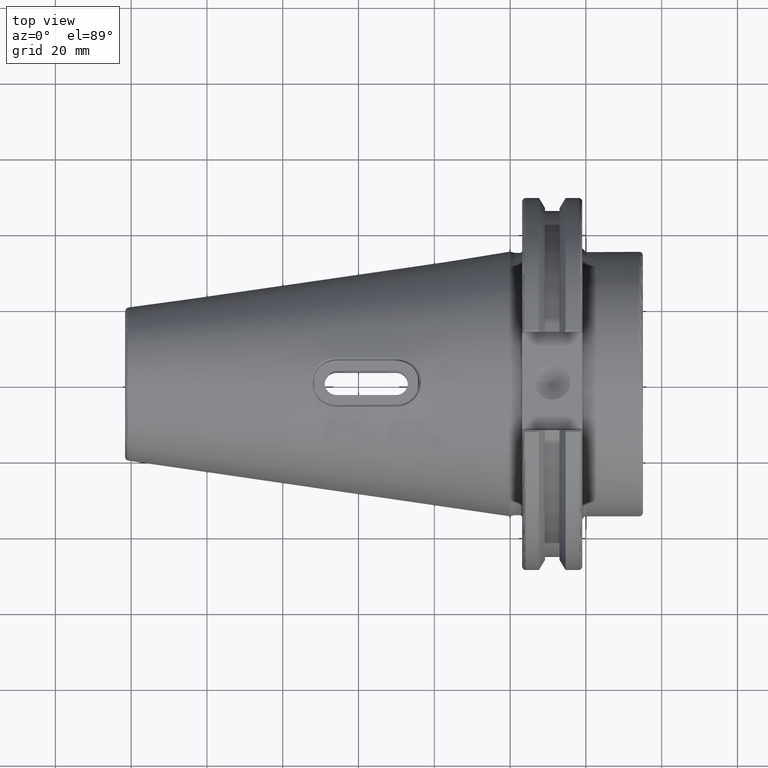
[diagram: clean part render]
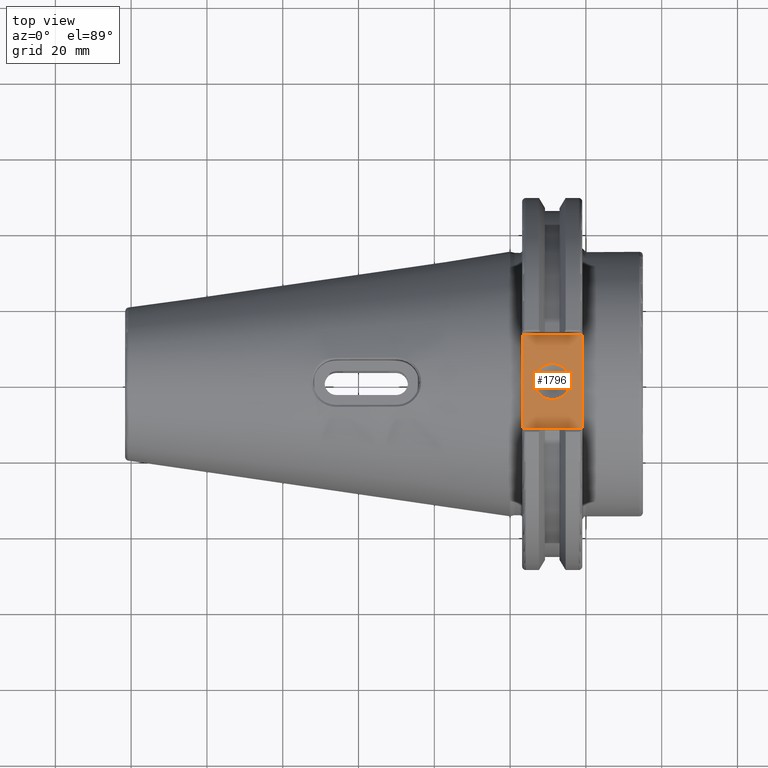
[diagram: same view with one face highlighted and labeled with its STEP entity id]
A machine part, top view. The second image highlights one B-rep face of the part: STEP entity #1796.
In plain terms, the highlighted planar face has unit normal (0, 0, 1).
Its self-contained STEP definition (entity closure, byte-faithful):
#150=FACE_BOUND('',#393,.T.);
#189=PLANE('',#1964);
#283=FACE_OUTER_BOUND('',#392,.T.);
#392=EDGE_LOOP('',(#1651,#1652,#1653,#1654));
#393=EDGE_LOOP('',(#1655));
#465=LINE('',#3444,#587);
#486=LINE('',#3544,#608);
#509=LINE('',#3722,#631);
#511=LINE('',#3725,#633);
#587=VECTOR('',#2199,10.);
#608=VECTOR('',#2238,10.);
#631=VECTOR('',#2307,10.);
#633=VECTOR('',#2311,10.);
#705=CIRCLE('',#1956,4.7625);
#813=VERTEX_POINT('',#3441);
#814=VERTEX_POINT('',#3443);
#840=VERTEX_POINT('',#3541);
#841=VERTEX_POINT('',#3543);
#887=VERTEX_POINT('',#3782);
#1038=EDGE_CURVE('',#813,#814,#465,.T.);
#1071=EDGE_CURVE('',#840,#841,#486,.T.);
#1120=EDGE_CURVE('',#841,#813,#509,.T.);
#1122=EDGE_CURVE('',#814,#840,#511,.T.);
#1144=EDGE_CURVE('',#887,#887,#705,.T.);
#1651=ORIENTED_EDGE('',*,*,#1120,.F.);
#1652=ORIENTED_EDGE('',*,*,#1071,.F.);
#1653=ORIENTED_EDGE('',*,*,#1122,.F.);
#1654=ORIENTED_EDGE('',*,*,#1038,.F.);
#1655=ORIENTED_EDGE('',*,*,#1144,.T.);
#1796=ADVANCED_FACE('',(#283,#150),#189,.T.);
#1956=AXIS2_PLACEMENT_3D('',#3783,#2354,#2355);
#1964=AXIS2_PLACEMENT_3D('',#3792,#2371,#2372);
#2199=DIRECTION('',(0.,1.,0.));
#2238=DIRECTION('',(0.,-1.,0.));
#2307=DIRECTION('',(-1.,1.31581988103722E-16,0.));
#2311=DIRECTION('',(1.,0.,0.));
#2354=DIRECTION('center_axis',(0.,0.,-1.));
#2355=DIRECTION('ref_axis',(1.,0.,0.));
#2371=DIRECTION('center_axis',(0.,0.,1.));
#2372=DIRECTION('ref_axis',(1.,0.,0.));
#3441=CARTESIAN_POINT('',(3.175,-12.45,37.719));
#3443=CARTESIAN_POINT('',(3.175,12.45,37.719));
#3444=CARTESIAN_POINT('',(3.175,24.60625,37.719));
#3541=CARTESIAN_POINT('',(19.05,12.45,37.719));
#3543=CARTESIAN_POINT('',(19.05,-12.45,37.719));
#3544=CARTESIAN_POINT('',(19.05,0.,37.719));
#3722=CARTESIAN_POINT('',(10.63125,-12.45,37.719));
#3725=CARTESIAN_POINT('',(19.06875,12.45,37.719));
#3782=CARTESIAN_POINT('',(6.3716,-5.83238038093927E-16,37.719));
#3783=CARTESIAN_POINT('Origin',(11.1341,0.,37.719));
#3792=CARTESIAN_POINT('Origin',(18.0875,0.,37.719));